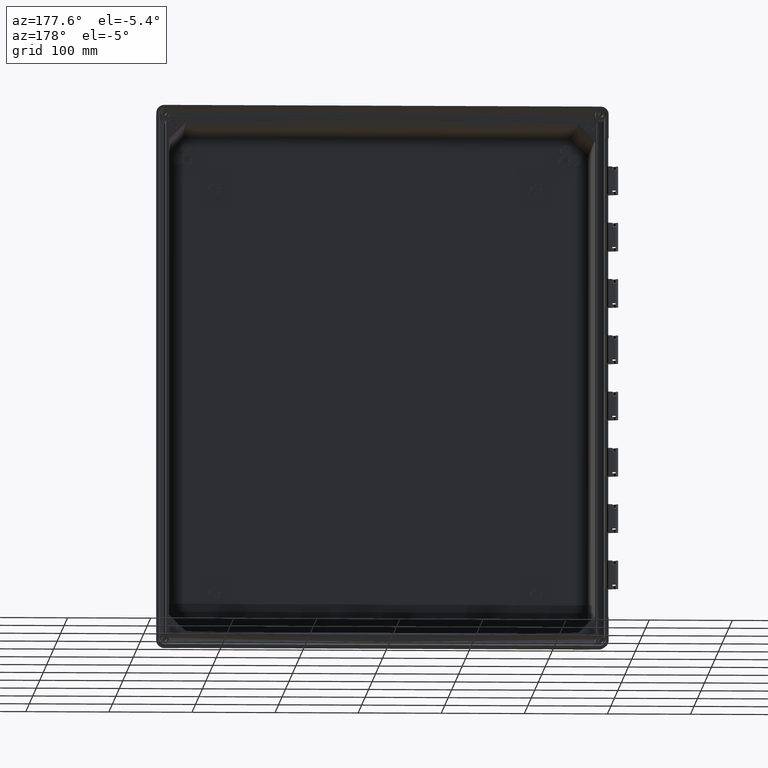
[diagram: clean part render]
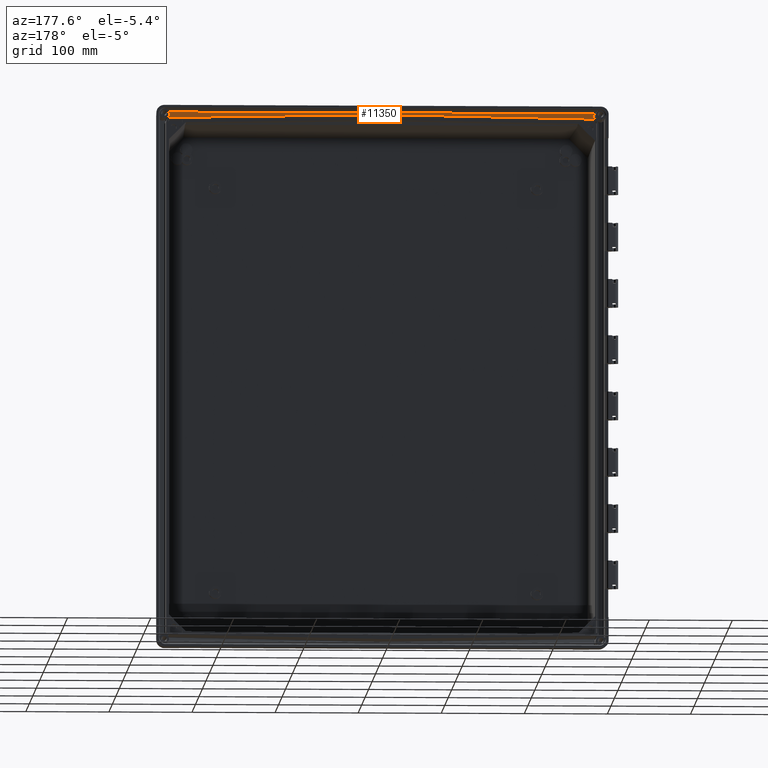
[diagram: same view with one face highlighted and labeled with its STEP entity id]
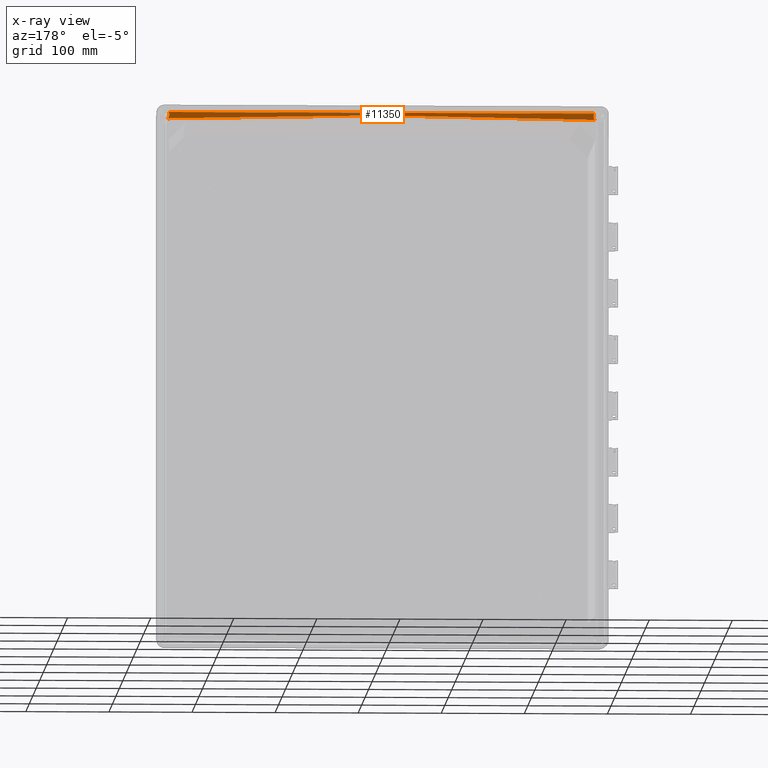
[diagram: x-ray of the same camera — body ghosted, the highlighted face saturated]
A machine part, auxiliary view. The second image highlights one B-rep face of the part: STEP entity #11350.
The next image is the same camera in x-ray: the body ghosted, the highlighted face saturated — about 0% of this face is hidden behind the body in this view.
In plain terms, the highlighted planar face has unit normal (0, 0.9781, -0.2079).
Its self-contained STEP definition (entity closure, byte-faithful):
#30 = CARTESIAN_POINT ( 'NONE',  ( -255.5231401594178100, -30.65976623473032000, 316.3262177938934800 ) ) ;
#127 = B_SPLINE_CURVE_WITH_KNOTS ( 'NONE', 3,
 ( #10624, #7375, #4097, #823, #29625, #26285, #23037, #19747, #16459, #13165, #9841, #6586, #3342, #30, #28832, #25527, #22258, #18959, #15698, #12374, #9065, #5855, #2550, #31371, #28067, #24742, #21468, #18227, #14907, #11568, #8322, #5088, #1753, #30615, #27279, #23964, #20727, #17443, #14109, #10811 ),
 .UNSPECIFIED., .F., .F.,
 ( 4, 1, 1, 1, 1, 2, 2, 1, 1, 2, 2, 1, 2, 2, 1, 2, 2, 1, 2, 2, 1, 1, 1, 2, 2, 4 ),
 ( 0.0000000000000000000, 0.1250000000001651200, 0.1875000000002476900, 0.2187500000002979000, 0.2343750000003194700, 0.2421875000003356500, 0.2500000000003518300, 0.3125000000003598800, 0.3437500000003640400, 0.3593750000003634900, 0.3750000000003628800, 0.4375000000003735300, 0.4687500000003788100, 0.5000000000003841400, 0.5625000000003750300, 0.5937500000003607100, 0.6250000000003465000, 0.6875000000002996500, 0.7187500000002761100, 0.7500000000002524600, 0.8125000000002090500, 0.8437500000001800800, 0.8593750000001686400, 0.8671875000001695300, 0.8750000000001704200, 1.000000000000000000 ),
 .UNSPECIFIED. ) ;
#158 = CARTESIAN_POINT ( 'NONE',  ( -256.7148691378000100, -31.22407134955000200, 313.6713709609999800 ) ) ;
#318 = CARTESIAN_POINT ( 'NONE',  ( 255.4791568851888400, -30.61722334762377800, 316.5262638995379800 ) ) ;
#507 = CARTESIAN_POINT ( 'NONE',  ( 255.6839286779239400, -29.83209806483658600, 320.2200542591668900 ) ) ;
#823 = CARTESIAN_POINT ( 'NONE',  ( -255.9981397164770000, -30.95816040701771500, 314.9223835864575000 ) ) ;
#1089 = CARTESIAN_POINT ( 'NONE',  ( 255.6322720877554700, -30.74758553646149700, 315.9130282063980500 ) ) ;
#1273 = CARTESIAN_POINT ( 'NONE',  ( 255.4573482274379900, -30.03443050179374700, 319.2681851056204900 ) ) ;
#1416 = LINE ( 'NONE', #26919, #3634 ) ;
#1596 = VERTEX_POINT ( 'NONE', #18771 ) ;
#1753 = CARTESIAN_POINT ( 'NONE',  ( -255.6449749575453400, -29.85885107908081400, 320.0942273502989800 ) ) ;
#1843 = CARTESIAN_POINT ( 'NONE',  ( 255.7731637790958200, -30.83821693941805400, 315.4866732142505700 ) ) ;
#1960 = CARTESIAN_POINT ( 'NONE',  ( 256.0263675891654900, -31.23744569014141300, 313.6083917144498500 ) ) ;
#2039 = CARTESIAN_POINT ( 'NONE',  ( 255.3617431882864800, -30.22458951689985400, 318.3734254323139800 ) ) ;
#2494 = CARTESIAN_POINT ( 'NONE',  ( 256.5631272700999800, -31.26685671606999900, 313.4700487229000000 ) ) ;
#2550 = CARTESIAN_POINT ( 'NONE',  ( -255.3500745028759400, -30.29693549742325900, 318.0332022052722300 ) ) ;
#2637 = CARTESIAN_POINT ( 'NONE',  ( 256.1778919649378800, -31.03578493566023500, 314.5571816050306200 ) ) ;
#2691 = VECTOR ( 'NONE', #10333, 999.9999999999998900 ) ;
#2751 = VERTEX_POINT ( 'NONE', #158 ) ;
#2814 = CARTESIAN_POINT ( 'NONE',  ( -255.5627380662299100, -31.22512974271873200, 313.6663916114113700 ) ) ;
#2844 = CARTESIAN_POINT ( 'NONE',  ( 255.3712229087406300, -30.44455068427481600, 317.3387272421309100 ) ) ;
#2920 = ORIENTED_EDGE ( 'NONE', *, *, #10697, .F. ) ;
#3027 = CARTESIAN_POINT ( 'NONE',  ( 255.8281133043816500, -29.74451854950782000, 320.6321036619348200 ) ) ;
#3342 = CARTESIAN_POINT ( 'NONE',  ( -255.5408340761555900, -30.67565461557056100, 316.2514688390018000 ) ) ;
#3616 = CARTESIAN_POINT ( 'NONE',  ( 255.5133862738549300, -30.65058404187053400, 316.3693213866861800 ) ) ;
#3634 = VECTOR ( 'NONE', #23629, 1000.000000000000000 ) ;
#3797 = CARTESIAN_POINT ( 'NONE',  ( 255.6647036882289100, -29.84534241793215500, 320.1577442654613600 ) ) ;
#4097 = CARTESIAN_POINT ( 'NONE',  ( -256.2571821625617200, -31.07372113315008400, 314.3787131148218900 ) ) ;
#4373 = CARTESIAN_POINT ( 'NONE',  ( 255.6415085383764800, -30.75416383100471800, 315.8820842392213400 ) ) ;
#4567 = CARTESIAN_POINT ( 'NONE',  ( 255.4337201218263000, -30.06599402453830500, 319.1196749215038700 ) ) ;
#5088 = CARTESIAN_POINT ( 'NONE',  ( -255.5672912333105600, -29.91756414310198400, 319.8180041014853700 ) ) ;
#5173 = CARTESIAN_POINT ( 'NONE',  ( 255.7745026324863000, -30.83900166561687300, 315.4829813617691300 ) ) ;
#5203 = B_SPLINE_CURVE_WITH_KNOTS ( 'NONE', 3,
 ( #31921, #28603, #25292, #22006 ),
 .UNSPECIFIED., .F., .F.,
 ( 4, 4 ),
 ( 0.0000000000000000000, 1.000000000000000000 ),
 .UNSPECIFIED. ) ;
#5295 = CARTESIAN_POINT ( 'NONE',  ( 255.5156611698891700, -31.22485151772895100, 313.6671883221605400 ) ) ;
#5376 = CARTESIAN_POINT ( 'NONE',  ( 255.3614369331259600, -30.22584065410818300, 318.3675392947579300 ) ) ;
#5802 = LINE ( 'NONE', #2494, #7521 ) ;
#5855 = CARTESIAN_POINT ( 'NONE',  ( -255.3480100359071800, -30.35211681263430000, 317.7735945282497600 ) ) ;
#5938 = CARTESIAN_POINT ( 'NONE',  ( 256.1885621963542700, -31.04019263145037000, 314.5364456472384500 ) ) ;
#6078 = ORIENTED_EDGE ( 'NONE', *, *, #6704, .F. ) ;
#6100 = CARTESIAN_POINT ( 'NONE',  ( -255.0509875283000300, -31.22323574002000200, 313.6753021935999800 ) ) ;
#6123 = CARTESIAN_POINT ( 'NONE',  ( 255.3720060511047100, -30.44675499745896000, 317.3283565830691900 ) ) ;
#6293 = CARTESIAN_POINT ( 'NONE',  ( 255.7722369351525100, -29.77638672980837600, 320.4821662492149100 ) ) ;
#6303 = ORIENTED_EDGE ( 'NONE', *, *, #18370, .T. ) ;
#6586 = CARTESIAN_POINT ( 'NONE',  ( -255.5684689801302300, -30.69954090125956400, 316.1390927001455700 ) ) ;
#6614 = EDGE_CURVE ( 'NONE', #1596, #12385, #5203, .T. ) ;
#6704 = EDGE_CURVE ( 'NONE', #26507, #13859, #5802, .T. ) ;
#6761 = B_SPLINE_CURVE_WITH_KNOTS ( 'NONE', 3,
 ( #6100, #2814, #31630, #28321 ),
 .UNSPECIFIED., .F., .F.,
 ( 4, 4 ),
 ( 0.0000000000000000000, 1.000000000000000000 ),
 .UNSPECIFIED. ) ;
#6793 = AXIS2_PLACEMENT_3D ( 'NONE', #24096, #20852, #17579 ) ;
#6865 = CARTESIAN_POINT ( 'NONE',  ( 255.5213901014076300, -30.65812498623746400, 316.3338467188029900 ) ) ;
#7055 = CARTESIAN_POINT ( 'NONE',  ( 255.6278330120387400, -29.87160562000790500, 320.0341870158040900 ) ) ;
#7375 = CARTESIAN_POINT ( 'NONE',  ( -256.5207257576449800, -31.16579271995271900, 313.9455503553230600 ) ) ;
#7521 = VECTOR ( 'NONE', #31319, 999.9999999999998900 ) ;
#7621 = FACE_OUTER_BOUND ( 'NONE', #22261, .T. ) ;
#7643 = CARTESIAN_POINT ( 'NONE',  ( 255.6594317111881500, -30.76667153895173700, 315.8232478828595600 ) ) ;
#7832 = CARTESIAN_POINT ( 'NONE',  ( 255.4166312090725300, -30.09316395192485800, 318.9918275608866900 ) ) ;
#7972 = CARTESIAN_POINT ( 'NONE',  ( -256.5631272700999800, -31.26685671606999900, 313.4700487229000000 ) ) ;
#8080 = ORIENTED_EDGE ( 'NONE', *, *, #6614, .F. ) ;
#8308 = CARTESIAN_POINT ( 'NONE',  ( -255.0509875283000300, -31.22323574002000200, 313.6753021935999800 ) ) ;
#8322 = CARTESIAN_POINT ( 'NONE',  ( -255.5135468318528400, -29.96861211676275600, 319.5778422675730300 ) ) ;
#8398 = CARTESIAN_POINT ( 'NONE',  ( 255.7776326719699100, -30.84083206177695800, 315.4743699990762600 ) ) ;
#8508 = CARTESIAN_POINT ( 'NONE',  ( 255.0509875283000300, -31.22323574002000200, 313.6753021935999800 ) ) ;
#8576 = CARTESIAN_POINT ( 'NONE',  ( 255.3606063563131800, -30.22929200416639300, 318.3513020896914400 ) ) ;
#8664 = EDGE_CURVE ( 'NONE', #2751, #8878, #127, .T. ) ;
#8878 = VERTEX_POINT ( 'NONE', #31051 ) ;
#8903 = CARTESIAN_POINT ( 'NONE',  ( 255.0509875283000300, -31.22323574002000200, 313.6753021935999800 ) ) ;
#9065 = CARTESIAN_POINT ( 'NONE',  ( -255.3581064771235800, -30.40615749227570700, 317.5193531196720200 ) ) ;
#9150 = CARTESIAN_POINT ( 'NONE',  ( 256.2088861231529200, -31.04849033280433800, 314.4974090943534300 ) ) ;
#9344 = CARTESIAN_POINT ( 'NONE',  ( 255.3738463531070100, -30.45179142074612600, 317.3046614393151700 ) ) ;
#9524 = CARTESIAN_POINT ( 'NONE',  ( 255.7500533047740700, -29.78982605539084700, 320.4189352354709400 ) ) ;
#9665 = EDGE_CURVE ( 'NONE', #1596, #13322, #12587, .T. ) ;
#9841 = CARTESIAN_POINT ( 'NONE',  ( -255.6406086248140400, -30.75565156886781200, 315.8751127638528300 ) ) ;
#10125 = CARTESIAN_POINT ( 'NONE',  ( 255.5380247934583300, -30.67317799987834100, 316.2630350847927600 ) ) ;
#10308 = CARTESIAN_POINT ( 'NONE',  ( 255.6053580444627800, -29.88881356798949400, 319.9532334502265500 ) ) ;
#10333 = DIRECTION ( 'NONE',  ( -0.5934174304093006200, 0.1673208761433001800, 0.7873115505904008100 ) ) ;
#10514 = ORIENTED_EDGE ( 'NONE', *, *, #8664, .T. ) ;
#10523 = B_SPLINE_CURVE_WITH_KNOTS ( 'NONE', 3,
 ( #8508, #5295, #1960, #30816 ),
 .UNSPECIFIED., .F., .F.,
 ( 4, 4 ),
 ( 0.0000000000000000000, 1.000000000000000000 ),
 .UNSPECIFIED. ) ;
#10624 = CARTESIAN_POINT ( 'NONE',  ( -256.7148691378000100, -31.22407134955000200, 313.6713709609999800 ) ) ;
#10697 = EDGE_CURVE ( 'NONE', #12385, #26507, #10523, .T. ) ;
#10811 = CARTESIAN_POINT ( 'NONE',  ( -256.1009149970000700, -29.61223948222000100, 321.2544424748999700 ) ) ;
#10892 = CARTESIAN_POINT ( 'NONE',  ( 255.6737403335893100, -30.77628626523863900, 315.7780190238810900 ) ) ;
#11068 = CARTESIAN_POINT ( 'NONE',  ( 255.4041622150008900, -30.11585904781611200, 318.8850334382645400 ) ) ;
#11350 = ADVANCED_FACE ( 'NONE', ( #7621 ), #27421, .T. ) ;
#11548 = CARTESIAN_POINT ( 'NONE',  ( -170.0339899154570800, -30.90839198917256100, 315.1565255835529300 ) ) ;
#11568 = CARTESIAN_POINT ( 'NONE',  ( -255.4683635289862900, -30.02014175056624300, 319.3354144008507700 ) ) ;
#11652 = CARTESIAN_POINT ( 'NONE',  ( 255.7839169282701200, -30.84449032396787200, 315.4571591312316100 ) ) ;
#11852 = CARTESIAN_POINT ( 'NONE',  ( 255.3593792317086000, -30.23452497627094400, 318.3266833567394700 ) ) ;
#12374 = CARTESIAN_POINT ( 'NONE',  ( -255.3763101904634100, -30.45943774820406300, 317.2686892233909400 ) ) ;
#12385 = VERTEX_POINT ( 'NONE', #8903 ) ;
#12469 = CARTESIAN_POINT ( 'NONE',  ( 256.2396393660491800, -31.06090849426097500, 314.4389876792141100 ) ) ;
#12587 = B_SPLINE_CURVE_WITH_KNOTS ( 'NONE', 3,
 ( #18211, #14890, #11548, #8308 ),
 .UNSPECIFIED., .F., .F.,
 ( 4, 4 ),
 ( 0.0000000000000000000, 1.000000000000000000 ),
 .UNSPECIFIED. ) ;
#12670 = CARTESIAN_POINT ( 'NONE',  ( 255.3766824431528200, -30.45930511347430800, 317.2693109465280400 ) ) ;
#12852 = CARTESIAN_POINT ( 'NONE',  ( 255.7321026935798300, -29.80103314963327000, 320.3662077207388300 ) ) ;
#13165 = CARTESIAN_POINT ( 'NONE',  ( -255.7155709523879900, -30.80439099996158000, 315.6458117688102900 ) ) ;
#13322 = VERTEX_POINT ( 'NONE', #15814 ) ;
#13431 = EDGE_CURVE ( 'NONE', #21198, #2751, #16948, .T. ) ;
#13438 = CARTESIAN_POINT ( 'NONE',  ( 255.5469564370777100, -30.68098324292978400, 316.2263189118226000 ) ) ;
#13616 = CARTESIAN_POINT ( 'NONE',  ( 255.5437349040649600, -29.93946685666448100, 319.7149431669450300 ) ) ;
#13622 = ORIENTED_EDGE ( 'NONE', *, *, #13431, .T. ) ;
#13644 = CARTESIAN_POINT ( 'NONE',  ( -256.5631272700999800, -31.26685671606999900, 313.4700487229000000 ) ) ;
#13859 = VERTEX_POINT ( 'NONE', #26950 ) ;
#14109 = CARTESIAN_POINT ( 'NONE',  ( -255.9548970295881200, -29.67574520546847300, 320.9556727565176300 ) ) ;
#14196 = CARTESIAN_POINT ( 'NONE',  ( 255.7006900431333900, -30.79405647131958900, 315.6944246866110000 ) ) ;
#14390 = CARTESIAN_POINT ( 'NONE',  ( 255.4013223897487700, -30.12121406968127600, 318.8598347898817500 ) ) ;
#14890 = CARTESIAN_POINT ( 'NONE',  ( -85.01699246004868400, -30.59354640074077700, 316.6377576187252300 ) ) ;
#14907 = CARTESIAN_POINT ( 'NONE',  ( -255.4539865504467600, -30.03823296072926000, 319.2503019488009400 ) ) ;
#15001 = CARTESIAN_POINT ( 'NONE',  ( 255.7965820252536800, -30.85179669918386500, 315.4227849733265400 ) ) ;
#15205 = CARTESIAN_POINT ( 'NONE',  ( 255.3566653135168000, -30.24712696955188600, 318.2673987067806300 ) ) ;
#15397 = ORIENTED_EDGE ( 'NONE', *, *, #29872, .F. ) ;
#15698 = CARTESIAN_POINT ( 'NONE',  ( -255.3834583000750300, -30.47626207403799700, 317.1895369935008900 ) ) ;
#15713 = B_SPLINE_CURVE_WITH_KNOTS ( 'NONE', 3,
 ( #28921, #25615, #22345, #19040, #15789, #12469, #9150, #5938, #2637, #31461, #28157, #24836, #21552, #18315, #15001, #11652, #8398, #5173, #1843, #30699, #27370, #24048, #20808, #17530, #14196, #10892, #7643, #4373, #1089, #29911, #26562, #23309, #20034, #16737, #13438, #10125, #6865, #3616, #318, #29109, #25804, #22536, #19235, #15974, #12670, #9344, #6123, #2844, #31656, #28349, #25034, #21744, #18491, #15205, #11852, #8576, #5376, #2039, #30888, #27560, #24238, #20985, #17724, #14390, #11068, #7832, #4567, #1273, #30113, #26760, #23487, #20223, #16922, #13616, #10308, #7055, #3797, #507, #29293, #25982, #22718, #19425, #16154, #12852, #9524, #6293, #3027, #31843, #28526, #25217, #21927 ),
 .UNSPECIFIED., .F., .F.,
 ( 4, 2, 1, 1, 2, 2, 2, 1, 1, 1, 1, 1, 1, 2, 2, 2, 2, 1, 1, 1, 2, 2, 2, 2, 2, 2, 2, 1, 1, 2, 2, 2, 2, 1, 1, 2, 2, 2, 1, 2, 2, 1, 1, 1, 2, 2, 2, 2, 1, 1, 1, 1, 2, 2, 2, 2, 4 ),
 ( 0.0000000000000000000, 0.06250000002970518300, 0.09375000004454972500, 0.1093750000519681900, 0.1171875000556734900, 0.1250000000593788100, 0.1875000000891031700, 0.2187500001039693600, 0.2343750001113931400, 0.2421875001151143900, 0.2460937501169751200, 0.2480468751179182600, 0.2490234376183804700, 0.2495117188686243600, 0.2500000001188681900, 0.2812500001137572800, 0.2968750001112153100, 0.3046875001099375600, 0.3085937501093044500, 0.3105468751089895400, 0.3115234376088322200, 0.3125000001086748500, 0.3437500001036049600, 0.3593750001010804800, 0.3750000000985559400, 0.4375000000884216000, 0.4687500000833545500, 0.4843750000808316200, 0.4921875000795791200, 0.4960937500789448000, 0.5000000000783104700, 0.5625000000681721300, 0.5937500000630936400, 0.6093750000605541200, 0.6171875000592962300, 0.6210937500586671800, 0.6250000000580382400, 0.6562500000529935000, 0.6718750000504710700, 0.6796875000492108600, 0.6875000000479506400, 0.7187500000429103400, 0.7343750000403805900, 0.7421875000391157100, 0.7460937500384848800, 0.7500000000378541600, 0.8125000000277193800, 0.8437500000226643100, 0.8593750000201432200, 0.8671875000188799000, 0.8710937500182481800, 0.8730468750179235500, 0.8740234375177669000, 0.8750000000176103600, 0.9062500000132026600, 0.9375000000087949600, 1.000000000000000000 ),
 .UNSPECIFIED. ) ;
#15789 = CARTESIAN_POINT ( 'NONE',  ( 256.3132605730037300, -31.08968184600422200, 314.3036221421172600 ) ) ;
#15814 = CARTESIAN_POINT ( 'NONE',  ( -255.0509875283000300, -31.22323574002000200, 313.6753021935999800 ) ) ;
#15974 = CARTESIAN_POINT ( 'NONE',  ( 255.3838106463778400, -30.47655011644440400, 317.1881739777285800 ) ) ;
#16154 = CARTESIAN_POINT ( 'NONE',  ( 255.7308384564367400, -29.80182357238988900, 320.3624889149772300 ) ) ;
#16459 = CARTESIAN_POINT ( 'NONE',  ( -255.7783568712766600, -30.84126785985382900, 315.4723197834183000 ) ) ;
#16737 = CARTESIAN_POINT ( 'NONE',  ( 255.5757806694224400, -30.70522196324524700, 316.1123008031096900 ) ) ;
#16922 = CARTESIAN_POINT ( 'NONE',  ( 255.5103849502774000, -29.97193927315286600, 319.5621894494608500 ) ) ;
#16948 = LINE ( 'NONE', #13644, #2691 ) ;
#17443 = CARTESIAN_POINT ( 'NONE',  ( -255.8321409073002700, -29.73856527936793600, 320.6601275453707600 ) ) ;
#17530 = CARTESIAN_POINT ( 'NONE',  ( 255.7164200002234800, -30.80395826196219700, 315.6478432739688700 ) ) ;
#17579 = DIRECTION ( 'NONE',  ( 0.0000000000000000000, 0.2079116908177993400, 0.9781476007337970300 ) ) ;
#17724 = CARTESIAN_POINT ( 'NONE',  ( 255.3963525958483600, -30.13098280595705700, 318.8138670308475200 ) ) ;
#18211 = CARTESIAN_POINT ( 'NONE',  ( 4.995359674353000700E-006, -30.27870081232000000, 318.1189896538999700 ) ) ;
#18227 = CARTESIAN_POINT ( 'NONE',  ( -255.4285120035712600, -30.07406510941676800, 319.0817249431986500 ) ) ;
#18315 = CARTESIAN_POINT ( 'NONE',  ( 255.8222975753633400, -30.86636862338600900, 315.3542281457193300 ) ) ;
#18370 = EDGE_CURVE ( 'NONE', #13322, #21198, #6761, .T. ) ;
#18491 = CARTESIAN_POINT ( 'NONE',  ( 255.3546588536205200, -30.25860049898261700, 318.2134259258154400 ) ) ;
#18771 = CARTESIAN_POINT ( 'NONE',  ( 4.995359674353000700E-006, -30.27870081232000000, 318.1189896538999700 ) ) ;
#18882 = CARTESIAN_POINT ( 'NONE',  ( 256.5631272700999800, -31.26685671606999900, 313.4700487229000000 ) ) ;
#18959 = CARTESIAN_POINT ( 'NONE',  ( -255.4007458785036400, -30.51047130222167100, 317.0285952285661300 ) ) ;
#19040 = CARTESIAN_POINT ( 'NONE',  ( 256.3795339909247000, -31.11398532653101900, 314.1892841167693300 ) ) ;
#19235 = CARTESIAN_POINT ( 'NONE',  ( 255.3907320915928900, -30.49083854445427000, 317.1209441755892200 ) ) ;
#19425 = CARTESIAN_POINT ( 'NONE',  ( 255.7290369333897200, -29.80295279715713300, 320.3571761077616900 ) ) ;
#19747 = CARTESIAN_POINT ( 'NONE',  ( -255.7864968166694800, -30.84599435504371800, 315.4500833718356000 ) ) ;
#20034 = CARTESIAN_POINT ( 'NONE',  ( 255.5976984638760400, -30.72247927562591500, 316.0311254660015800 ) ) ;
#20223 = CARTESIAN_POINT ( 'NONE',  ( 255.4817396099191500, -30.00490428874457300, 319.4071008216955600 ) ) ;
#20226 = VERTEX_POINT ( 'NONE', #24445 ) ;
#20727 = CARTESIAN_POINT ( 'NONE',  ( -255.7264282378138200, -29.80458336892563100, 320.3495368534675500 ) ) ;
#20808 = CARTESIAN_POINT ( 'NONE',  ( 255.7552858523739600, -30.82793523264918200, 315.5350455646781100 ) ) ;
#20852 = DIRECTION ( 'NONE',  ( 0.0000000000000000000, 0.9781476007337971400, -0.2079116908177993700 ) ) ;
#20985 = CARTESIAN_POINT ( 'NONE',  ( 255.3892559750948100, -30.14551036005874000, 318.7455063530268300 ) ) ;
#21198 = VERTEX_POINT ( 'NONE', #7972 ) ;
#21468 = CARTESIAN_POINT ( 'NONE',  ( -255.3942637158774900, -30.12837772637131900, 318.8262041701496500 ) ) ;
#21552 = CARTESIAN_POINT ( 'NONE',  ( 255.8752621051546600, -30.89534733171832300, 315.2178898013105500 ) ) ;
#21744 = CARTESIAN_POINT ( 'NONE',  ( 255.3512547513315400, -30.28244333623721500, 318.1012698362791900 ) ) ;
#21927 = CARTESIAN_POINT ( 'NONE',  ( 256.1009149970000700, -29.61223948222000100, 321.2544424748999700 ) ) ;
#22006 = CARTESIAN_POINT ( 'NONE',  ( 255.0509875283000300, -31.22323574002000200, 313.6753021935999800 ) ) ;
#22258 = CARTESIAN_POINT ( 'NONE',  ( -255.4307488105164600, -30.56140996153742900, 316.7889476782128800 ) ) ;
#22261 = EDGE_LOOP ( 'NONE', ( #6303, #13622, #10514, #27787, #15397, #6078, #2920, #8080, #29139 ) ) ;
#22345 = CARTESIAN_POINT ( 'NONE',  ( 256.5162298899302900, -31.16208020723079700, 313.9630165204139900 ) ) ;
#22536 = CARTESIAN_POINT ( 'NONE',  ( 255.4054933115022000, -30.51875614085139100, 316.9895841193229000 ) ) ;
#22718 = CARTESIAN_POINT ( 'NONE',  ( 255.7263413154348700, -29.80464582656933800, 320.3492107029147200 ) ) ;
#23037 = CARTESIAN_POINT ( 'NONE',  ( -255.8018291586718400, -30.85478192252632800, 315.4087411172678800 ) ) ;
#23309 = CARTESIAN_POINT ( 'NONE',  ( 255.6236516566786200, -30.74136247699207300, 315.9423009346446100 ) ) ;
#23487 = CARTESIAN_POINT ( 'NONE',  ( 255.4795467427423100, -30.00745383733040900, 319.3951060035443000 ) ) ;
#23629 = DIRECTION ( 'NONE',  ( 1.000000000000000000, 0.0000000000000000000, 0.0000000000000000000 ) ) ;
#23964 = CARTESIAN_POINT ( 'NONE',  ( -255.7194978587084500, -29.80897213472476200, 320.3288893337454500 ) ) ;
#24048 = CARTESIAN_POINT ( 'NONE',  ( 255.7698942065256900, -30.83629719968656600, 315.4957048844027600 ) ) ;
#24096 = CARTESIAN_POINT ( 'NONE',  ( -50.79999999999999700, -28.90581455205000000, 324.5779116908000200 ) ) ;
#24151 = EDGE_CURVE ( 'NONE', #8878, #20226, #1416, .T. ) ;
#24238 = CARTESIAN_POINT ( 'NONE',  ( 255.3831818288552100, -30.15965908935704600, 318.6789295944033700 ) ) ;
#24445 = CARTESIAN_POINT ( 'NONE',  ( 256.1009149970000700, -29.61223948222000100, 321.2544424748999700 ) ) ;
#24742 = CARTESIAN_POINT ( 'NONE',  ( -255.3719060260423800, -30.18438352509585000, 318.5627176031649100 ) ) ;
#24836 = CARTESIAN_POINT ( 'NONE',  ( 255.9232592191575900, -30.91989687693196500, 315.1023893410418900 ) ) ;
#25034 = CARTESIAN_POINT ( 'NONE',  ( 255.3497921348634100, -30.29953335200972500, 318.0208832714598100 ) ) ;
#25217 = CARTESIAN_POINT ( 'NONE',  ( 256.0543445118423200, -29.63249435657397900, 321.1591539755521600 ) ) ;
#25292 = CARTESIAN_POINT ( 'NONE',  ( 170.0339932456927600, -30.90839198921540300, 315.1565255833289700 ) ) ;
#25527 = CARTESIAN_POINT ( 'NONE',  ( -255.4729664356393900, -30.61122307197399200, 316.5545954190061500 ) ) ;
#25615 = CARTESIAN_POINT ( 'NONE',  ( 256.6128954449938000, -31.19346053379769400, 313.8153835215748600 ) ) ;
#25804 = CARTESIAN_POINT ( 'NONE',  ( 255.4165563180482600, -30.53648857645326900, 316.9061449210049100 ) ) ;
#25982 = CARTESIAN_POINT ( 'NONE',  ( 255.7200980932425400, -29.80859055690341100, 320.3306514829449200 ) ) ;
#26285 = CARTESIAN_POINT ( 'NONE',  ( -255.8250438550748800, -30.86792691716602400, 315.3468987796971400 ) ) ;
#26507 = VERTEX_POINT ( 'NONE', #18882 ) ;
#26562 = CARTESIAN_POINT ( 'NONE',  ( 255.6255705551523900, -30.74275504587419100, 315.9357504320626600 ) ) ;
#26760 = CARTESIAN_POINT ( 'NONE',  ( 255.4757342490498500, -30.01194527016586700, 319.3739750158947600 ) ) ;
#26919 = CARTESIAN_POINT ( 'NONE',  ( -256.1009149970000700, -29.61223948222000100, 321.2544424748999700 ) ) ;
#26950 = CARTESIAN_POINT ( 'NONE',  ( 256.7148691378000100, -31.22407134955000200, 313.6713709609999800 ) ) ;
#27279 = CARTESIAN_POINT ( 'NONE',  ( -255.7066166216112600, -29.81725936943614000, 320.2899009597979300 ) ) ;
#27370 = CARTESIAN_POINT ( 'NONE',  ( 255.7714038838719800, -30.83718407162811200, 315.4915324790820800 ) ) ;
#27421 = PLANE ( 'NONE',  #6793 ) ;
#27560 = CARTESIAN_POINT ( 'NONE',  ( 255.3722635401771000, -30.18744647852030700, 318.5481795997582700 ) ) ;
#27787 = ORIENTED_EDGE ( 'NONE', *, *, #24151, .T. ) ;
#28067 = CARTESIAN_POINT ( 'NONE',  ( -255.3574754014462700, -30.24151811166700900, 318.2939205068895500 ) ) ;
#28157 = CARTESIAN_POINT ( 'NONE',  ( 256.0226427726813700, -30.96859337126654000, 314.8732856351008400 ) ) ;
#28321 = CARTESIAN_POINT ( 'NONE',  ( -256.5631272700999800, -31.26685671606999900, 313.4700487229000000 ) ) ;
#28349 = CARTESIAN_POINT ( 'NONE',  ( 255.3494538820525600, -30.35437487619188300, 317.7629268243097200 ) ) ;
#28526 = CARTESIAN_POINT ( 'NONE',  ( 255.9850265295987100, -29.66323447158598700, 321.0145337851375900 ) ) ;
#28603 = CARTESIAN_POINT ( 'NONE',  ( 85.01699912052622200, -30.59354640077283000, 316.6377576186155200 ) ) ;
#28832 = CARTESIAN_POINT ( 'NONE',  ( -255.5149337305252000, -30.65210869240492600, 316.3622436980821200 ) ) ;
#28921 = CARTESIAN_POINT ( 'NONE',  ( 256.7148691378000100, -31.22407134955000200, 313.6713709609999800 ) ) ;
#29109 = CARTESIAN_POINT ( 'NONE',  ( 255.4521880387511900, -30.58704428350092300, 316.6682607596977700 ) ) ;
#29139 = ORIENTED_EDGE ( 'NONE', *, *, #9665, .T. ) ;
#29293 = CARTESIAN_POINT ( 'NONE',  ( 255.7077969556544900, -29.81645719228178100, 320.2936405999109300 ) ) ;
#29625 = CARTESIAN_POINT ( 'NONE',  ( -255.8807247638125700, -30.89834407523587600, 315.2037973019969300 ) ) ;
#29872 = EDGE_CURVE ( 'NONE', #13859, #20226, #15713, .T. ) ;
#29911 = CARTESIAN_POINT ( 'NONE',  ( 255.6282582973894900, -30.74469655068293900, 315.9266177663582800 ) ) ;
#30113 = CARTESIAN_POINT ( 'NONE',  ( 255.4700809247689200, -30.01868516879472500, 319.3422653069148400 ) ) ;
#30615 = CARTESIAN_POINT ( 'NONE',  ( -255.6875623002963800, -29.82970527338267500, 320.2313475853514400 ) ) ;
#30699 = CARTESIAN_POINT ( 'NONE',  ( 255.7722717863778400, -30.83769372850554900, 315.4891347309002800 ) ) ;
#30816 = CARTESIAN_POINT ( 'NONE',  ( 256.5631272700999800, -31.26685671606999900, 313.4700487229000000 ) ) ;
#30888 = CARTESIAN_POINT ( 'NONE',  ( 255.3666230309822300, -30.20529107921698000, 318.4642189271610300 ) ) ;
#31051 = CARTESIAN_POINT ( 'NONE',  ( -256.1009149970000700, -29.61223948222000100, 321.2544424748999700 ) ) ;
#31319 = DIRECTION ( 'NONE',  ( 0.5934174304092907400, 0.1673208761433973800, 0.7873115505903877100 ) ) ;
#31371 = CARTESIAN_POINT ( 'NONE',  ( -255.3541532382295100, -30.25989447937821500, 318.2074664940525400 ) ) ;
#31461 = CARTESIAN_POINT ( 'NONE',  ( 256.0934181609256900, -31.00052092699605300, 314.7230803031144400 ) ) ;
#31630 = CARTESIAN_POINT ( 'NONE',  ( -256.0667846990901900, -31.23967168671438800, 313.5979771438391000 ) ) ;
#31656 = CARTESIAN_POINT ( 'NONE',  ( 255.3545523224455800, -30.39570909278711500, 317.5685096206786400 ) ) ;
#31843 = CARTESIAN_POINT ( 'NONE',  ( 255.8613720066262800, -29.72631130812971600, 320.7177673733807000 ) ) ;
#31921 = CARTESIAN_POINT ( 'NONE',  ( 4.995359674353000700E-006, -30.27870081232000000, 318.1189896538999700 ) ) ;